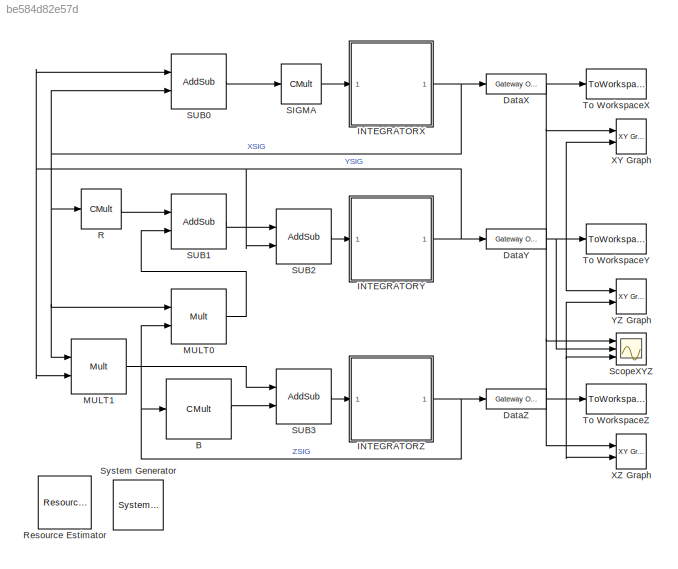
MODEL slx_be584d82e57d
KIND model
BLOCK [Reference]  System Generator  REF=xbsIndex_r4/ System Generator
  AttributesFormatString = System\nGenerator
  Impl_file = ISE Defaults
  Ports = []
  SourceBlock = xbsIndex_r4/ System Generator
  SourceType = Xilinx System Generator Block
  Synth_file = XST Defaults
  Tag = genX
  UserDataPersistent = on
  block_type = sysgen
  clock_wrapper = Clock Enables
  core_generation = According to Block Masks
  dbl_ovrd = According to Block Masks
  dcm_input_clock_period = 10
  deprecated_control = off
  directory = ./netlist
  eval_field = 0
  has_advanced_control = 0
  incr_netlist = off
  infoedit = System Generator
  package = fbg676
  part = xc7k325t
  proj_type = Project Navigator
  run_coregen = off
  sg_icon_stat = 50,50,0,0,token,white,0,58c5b5770fe5f7c311f53dbc6e73f0f6,right,,[ ],[ ]
  sg_mask_display = fprintf('','COMMENT: begin icon graphics');\npatch([0 50 50 0 0 ],[0 0 50 50 0 ],[1 1 1 ]);\npatch([1.6375 16.81 27.31 37.81 48.31 27.31 12.1375 1.6375 ],[36.655 36.655 47.155 36.655 47.155 47.155 47.155 36.655 ],[0.933333 0.203922 0.141176 ]);\npatch([12.1375 27.31 16.81 1.6375 12.1375 ],[26.155 26.155 36.655 36.655 26.155 ],[0.698039 0.0313725 0.219608 ]);\npatch([1.6375 16.81 27.31 12.1375 1.6375 ]...<+327ch>
  sggui_pos = 1077, 194, 464, 470
  simulink_period = 0.01
  speed = -3
  synthesis_tool = XST
  sysclk_period = 10
  testbench = off
  trim_vbits = Everywhere in SubSystem
  xilinxfamily = kintex7
BLOCK [Reference] B  REF=xbsIndex_r4/CMult
  Ports = [1, 1]
  SourceBlock = xbsIndex_r4/CMult
  SourceType = Xilinx Constant Multiplier Block
  arith_type = Signed  (2's comp)
  bin_pt = 52
  block_type = cmult
  const = 8/3
  const_bin_pt = 12
  const_n_bits = 32
  dbl_ovrd = off
  en = off
  exp_bits = 8
  float_type = Single
  fraction_bits = 24
  gui_display_data_type = Fixed-point
  has_advanced_control = 0
  latency = 0
  mem_type = Distributed RAM
  n_bits = 64
  overflow = Wrap
  pipeline = off
  precision = User Defined
  quantization = Round  (unbiased: +/- Inf)
  sg_icon_stat = 65,60,1,1,white,blue,2,daff8bfa,right,,[ ],[ ]
  sg_mask_display = fprintf('','COMMENT: begin icon graphics');\npatch([0 65 0 0 ],[0 30 60 0 ],[0.77 0.82 0.91 ]);\nplot([0 65 0 0 ],[0 30 60 0 ]);\npatch([5.07 12.006 16.806 21.606 26.406 16.806 9.87 5.07 ],[35.328 35.328 40.128 35.328 40.128 40.128 40.128 35.328 ],[1 1 1 ]);\npatch([9.87 16.806 12.006 5.07 9.87 ],[30.528 30.528 35.328 35.328 30.528 ],[0.931 0.946 0.973 ]);\npatch([5.07 12.006 16.806 9.87 5.07 ],[25.728...<+342ch>
  sggui_pos = 933,216,348,417
  use_behavioral_HDL = off
  xl_area = [0,0,0,0,0,0,0]
  xl_use_area = off
BLOCK [Reference] DataX  REF=xbsIndex_r4/Gateway Out
  DACChannel = '1'
  LOCs = {}
  Ports = [1, 1]
  SourceBlock = xbsIndex_r4/Gateway Out
  SourceType = Xilinx Gateway Out Block
  UseAsDAC = off
  block_type = gatewayout
  has_advanced_control = 0
  hdl_port = on
  infoedit = Gateway out block.  Converts Xilinx fixed-point or floating-point type inputs into ouputs of type Simulink integer, single, double, or fixed-point.<br><br>Hardware notes:  In hardware these blocks become top level output ports or are discarded, depending on how they are configured.  <repeated x3 — deduplicated; at blocks: DataX, DataY, DataZ>
  inherit_from_input = off
  locs_specified = off
  sg_icon_stat = 60,20,1,1,white,yellow,1,cc31b7ac,right,,[ ],[ ]
  sg_mask_display = fprintf('','COMMENT: begin icon graphics');\npatch([0 60 60 0 0 ],[0 0 20 20 0 ],[0.95 0.93 0.65 ]);\nplot([0 60 60 0 0 ],[0 0 20 20 0 ]);\npatch([25.55 28.44 30.44 32.44 34.44 30.44 27.55 25.55 ],[12.22 12.22 14.22 12.22 14.22 14.22 14.22 12.22 ],[1 1 1 ]);\npatch([27.55 30.44 28.44 25.55 27.55 ],[10.22 10.22 12.22 12.22 10.22 ],[0.985 0.979 0.895 ]);\npatch([25.55 28.44 30.44 27.55 25.55 ],[8.22 8.22...<+384ch>  <repeated x3 — deduplicated; at blocks: DataX, DataY, DataZ>
  sggui_pos = -1,-1,-1,-1
  timing_constraint = None
  xl_area = [0,0,0,0,0,0,0]
  xl_use_area = off
BLOCK [Reference] DataY  REF=xbsIndex_r4/Gateway Out
  DACChannel = '1'
  LOCs = {}
  Ports = [1, 1]
  SourceBlock = xbsIndex_r4/Gateway Out
  SourceType = Xilinx Gateway Out Block
  UseAsDAC = off
  block_type = gatewayout
  has_advanced_control = 0
  hdl_port = on
  inherit_from_input = off
  locs_specified = off
  sg_icon_stat = 60,20,1,1,white,yellow,1,cc31b7ac,right,,[ ],[ ]
  sggui_pos = -1,-1,-1,-1
  timing_constraint = None
  xl_area = [0,0,0,0,0,0,0]
  xl_use_area = off
BLOCK [Reference] DataZ  REF=xbsIndex_r4/Gateway Out
  DACChannel = '1'
  LOCs = {}
  Ports = [1, 1]
  SourceBlock = xbsIndex_r4/Gateway Out
  SourceType = Xilinx Gateway Out Block
  UseAsDAC = off
  block_type = gatewayout
  has_advanced_control = 0
  hdl_port = on
  inherit_from_input = off
  locs_specified = off
  sg_icon_stat = 60,20,1,1,white,yellow,1,cc31b7ac,right,,[ ],[ ]
  sggui_pos = -1,-1,-1,-1
  timing_constraint = None
  xl_area = [0,0,0,0,0,0,0]
  xl_use_area = off
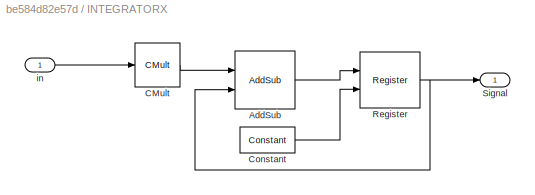
BLOCK [SubSystem] INTEGRATORX
  Ports = [1, 1]
  RequestExecContextInheritance = off
BLOCK [Reference] INTEGRATORX/AddSub  REF=xbsIndex_r4/AddSub
  Ports = [2, 1]
  SourceBlock = xbsIndex_r4/AddSub
  SourceType = Xilinx Adder/Subtracter Block
  arith_type = Signed  (2's comp)
  bin_pt = 12
  block_type = addsub
  dbl_ovrd = off
  en = off
  has_advanced_control = 0
  hw_selection = Fabric
  latency = 0
  mode = Addition
  n_bits = 32
  overflow = Wrap
  pipelined = off
  precision = User Defined
  quantization = Round  (unbiased: +/- Inf)
  sg_icon_stat = 60,58,2,1,white,blue,0,e139daf6,right,,[ ],[ ]
  sg_mask_display = fprintf('','COMMENT: begin icon graphics');\npatch([0 60 60 0 0 ],[0 0 58 58 0 ],[0.77 0.82 0.91 ]);\nplot([0 60 60 0 0 ],[0 0 58 58 0 ]);\npatch([12.2 23.76 31.76 39.76 47.76 31.76 20.2 12.2 ],[37.88 37.88 45.88 37.88 45.88 45.88 45.88 37.88 ],[1 1 1 ]);\npatch([20.2 31.76 23.76 12.2 20.2 ],[29.88 29.88 37.88 37.88 29.88 ],[0.931 0.946 0.973 ]);\npatch([12.2 23.76 31.76 20.2 12.2 ],[21.88 21.88 29.88 ...<+411ch>  <repeated x3 — deduplicated; at blocks: AddSub>
  sggui_pos = 1017,600,348,319
  use_behavioral_HDL = off
  use_carryin = off
  use_carryout = off
  xl_area = [0,0,0,0,0,0,0]
  xl_use_area = off
BLOCK [Reference] INTEGRATORX/CMult  REF=xbsIndex_r4/CMult
  Ports = [1, 1]
  SourceBlock = xbsIndex_r4/CMult
  SourceType = Xilinx Constant Multiplier Block
  arith_type = Signed  (2's comp)
  bin_pt = 52
  block_type = cmult
  block_version = 11.1
  const = 1/100
  const_bin_pt = 12
  const_n_bits = 32
  dbl_ovrd = off
  en = off
  exp_bits = 8
  float_type = Single
  fraction_bits = 24
  gui_display_data_type = Fixed-point
  has_advanced_control = 0
  latency = 0
  mem_type = Distributed RAM
  n_bits = 64
  overflow = Wrap
  pipeline = off
  precision = User Defined
  quantization = Round  (unbiased: +/- Inf)
  sg_icon_stat = 45,44,1,1,white,blue,2,984ca216,right,,[ ],[ ]
  sg_mask_display = fprintf('','COMMENT: begin icon graphics');\npatch([0 45 0 0 ],[0 22 44 0 ],[0.77 0.82 0.91 ]);\nplot([0 45 0 0 ],[0 22 44 0 ]);\npatch([2.74 7.942 11.542 15.142 18.742 11.542 6.34 2.74 ],[25.996 25.996 29.596 25.996 29.596 29.596 29.596 25.996 ],[1 1 1 ]);\npatch([6.34 11.542 7.942 2.74 6.34 ],[22.396 22.396 25.996 25.996 22.396 ],[0.931 0.946 0.973 ]);\npatch([2.74 7.942 11.542 6.34 2.74 ],[18.796 18...<+340ch>  <repeated x3 — deduplicated; at blocks: CMult>
  sggui_pos = -1,-1,-1,-1
  use_behavioral_HDL = off
  xl_area = [0,0,0,0,0,0,0]
  xl_use_area = off
BLOCK [Reference] INTEGRATORX/Constant  REF=xbsIndex_r4/Constant
  Ports = [0, 1]
  SourceBlock = xbsIndex_r4/Constant
  SourceType = Xilinx Constant Block Block
  arith_type = Boolean
  bin_pt = 14
  block_type = constant
  block_version = 11.1
  carry = CIN
  const = 0
  dbl_ovrd = off
  dsp48_infoedit = The use of this block for DSP48 instructions is deprecated.  Please use the Opmode block.
  equ = P=C
  exp_width = 8
  explicit_period = on
  frac_width = 24
  gui_display_data_type = Fixed-point
  has_advanced_control = 0
  inp1 = P
  inp2 = PCIN>>17
  n_bits = 32
  opr = +
  opselect = C
  period = 0.01
  preci_type = Single
  sg_icon_stat = 55,26,0,1,white,blue,0,bf4ddd8b,right,,[ ],[ ]
  sg_list_contents = {'table'=>{'carry'=>'popup(0|1|CIN|~SIGN(P or PCIN)|~SIGN(A*B or A:B)|~SIGND(A*B or A:B))','inp1'=>'popup(0|P|A:B|A*B|C|P+C|A:B+C)','inp2'=>'popup(0|PCIN|P|C|PCIN>>17|P>>17)','opselect'=>'popup(C + A*B|PCIN + A*B|P + A*B|A * B|C + A:B|C - A:B|C|Custom)','userSelections'=>{'carry'=>'CIN','inp1'=>'P','inp2'=>'PCIN>>17','opselect'=>'C'}}}
  sg_mask_display = fprintf('','COMMENT: begin icon graphics');\npatch([0 55 55 0 0 ],[0 0 26 26 0 ],[0.77 0.82 0.91 ]);\nplot([0 55 55 0 0 ],[0 0 26 26 0 ]);\npatch([20.325 24.66 27.66 30.66 33.66 27.66 23.325 20.325 ],[16.33 16.33 19.33 16.33 19.33 19.33 19.33 16.33 ],[1 1 1 ]);\npatch([23.325 27.66 24.66 20.325 23.325 ],[13.33 13.33 16.33 16.33 13.33 ],[0.931 0.946 0.973 ]);\npatch([20.325 24.66 27.66 23.325 20.325 ],[...<+323ch>  <repeated x3 — deduplicated; at blocks: Constant>
  sggui_pos = -1,-1,-1,-1
BLOCK [Reference] INTEGRATORX/Register  REF=xbsIndex_r4/Register
  Ports = [2, 1]
  SourceBlock = xbsIndex_r4/Register
  SourceType = Xilinx Register Block
  block_type = register
  block_version = 11.1
  dbl_ovrd = off
  en = off
  has_advanced_control = 0
  init = 10
  rst = on
  sg_icon_stat = 60,56,2,1,white,blue,0,140cc11c,right,,[ ],[ ]
  sg_mask_display = fprintf('','COMMENT: begin icon graphics');\npatch([0 60 60 0 0 ],[0 0 56 56 0 ],[0.77 0.82 0.91 ]);\nplot([0 60 60 0 0 ],[0 0 56 56 0 ]);\npatch([12.2 23.76 31.76 39.76 47.76 31.76 20.2 12.2 ],[36.88 36.88 44.88 36.88 44.88 44.88 44.88 36.88 ],[1 1 1 ]);\npatch([20.2 31.76 23.76 12.2 20.2 ],[28.88 28.88 36.88 36.88 28.88 ],[0.931 0.946 0.973 ]);\npatch([12.2 23.76 31.76 20.2 12.2 ],[20.88 20.88 28.88 ...<+435ch>  <repeated x3 — deduplicated; at blocks: Register>
  sggui_pos = 879,333,348,192
  xl_area = [0,0,0,0,0,0,0]
  xl_use_area = off
BLOCK [Outport] INTEGRATORX/Signal
  IconDisplay = Port number
  SampleTime = 0.01
BLOCK [Inport] INTEGRATORX/in
  IconDisplay = Port number
  SampleTime = 0.01
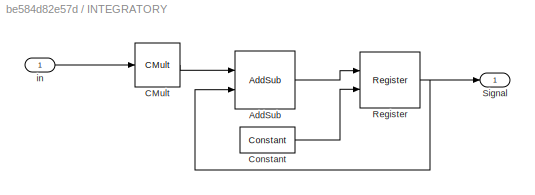
BLOCK [SubSystem] INTEGRATORY
  Ports = [1, 1]
  RequestExecContextInheritance = off
BLOCK [Reference] INTEGRATORY/AddSub  REF=xbsIndex_r4/AddSub
  Ports = [2, 1]
  SourceBlock = xbsIndex_r4/AddSub
  SourceType = Xilinx Adder/Subtracter Block
  arith_type = Signed  (2's comp)
  bin_pt = 12
  block_type = addsub
  dbl_ovrd = off
  en = off
  has_advanced_control = 0
  hw_selection = Fabric
  latency = 0
  mode = Addition
  n_bits = 32
  overflow = Wrap
  pipelined = off
  precision = User Defined
  quantization = Round  (unbiased: +/- Inf)
  sg_icon_stat = 60,58,2,1,white,blue,0,e139daf6,right,,[ ],[ ]
  sggui_pos = 1017,600,348,319
  use_behavioral_HDL = off
  use_carryin = off
  use_carryout = off
  xl_area = [0,0,0,0,0,0,0]
  xl_use_area = off
BLOCK [Reference] INTEGRATORY/CMult  REF=xbsIndex_r4/CMult
  Ports = [1, 1]
  SourceBlock = xbsIndex_r4/CMult
  SourceType = Xilinx Constant Multiplier Block
  arith_type = Signed  (2's comp)
  bin_pt = 52
  block_type = cmult
  block_version = 11.1
  const = 1/100
  const_bin_pt = 12
  const_n_bits = 32
  dbl_ovrd = off
  en = off
  exp_bits = 8
  float_type = Single
  fraction_bits = 24
  gui_display_data_type = Fixed-point
  has_advanced_control = 0
  latency = 0
  mem_type = Distributed RAM
  n_bits = 64
  overflow = Wrap
  pipeline = off
  precision = User Defined
  quantization = Round  (unbiased: +/- Inf)
  sg_icon_stat = 45,44,1,1,white,blue,2,984ca216,right,,[ ],[ ]
  sggui_pos = -1,-1,-1,-1
  use_behavioral_HDL = off
  xl_area = [0,0,0,0,0,0,0]
  xl_use_area = off
BLOCK [Reference] INTEGRATORY/Constant  REF=xbsIndex_r4/Constant
  Ports = [0, 1]
  SourceBlock = xbsIndex_r4/Constant
  SourceType = Xilinx Constant Block Block
  arith_type = Boolean
  bin_pt = 14
  block_type = constant
  block_version = 11.1
  carry = CIN
  const = 0
  dbl_ovrd = off
  dsp48_infoedit = The use of this block for DSP48 instructions is deprecated.  Please use the Opmode block.
  equ = P=C
  exp_width = 8
  explicit_period = on
  frac_width = 24
  gui_display_data_type = Fixed-point
  has_advanced_control = 0
  inp1 = P
  inp2 = PCIN>>17
  n_bits = 32
  opr = +
  opselect = C
  period = 0.01
  preci_type = Single
  sg_icon_stat = 55,26,0,1,white,blue,0,bf4ddd8b,right,,[ ],[ ]
  sg_list_contents = {'table'=>{'carry'=>'popup(0|1|CIN|~SIGN(P or PCIN)|~SIGN(A*B or A:B)|~SIGND(A*B or A:B))','inp1'=>'popup(0|P|A:B|A*B|C|P+C|A:B+C)','inp2'=>'popup(0|PCIN|P|C|PCIN>>17|P>>17)','opselect'=>'popup(C + A*B|PCIN + A*B|P + A*B|A * B|C + A:B|C - A:B|C|Custom)','userSelections'=>{'carry'=>'CIN','inp1'=>'P','inp2'=>'PCIN>>17','opselect'=>'C'}}}
  sggui_pos = -1,-1,-1,-1
BLOCK [Reference] INTEGRATORY/Register  REF=xbsIndex_r4/Register
  Ports = [2, 1]
  SourceBlock = xbsIndex_r4/Register
  SourceType = Xilinx Register Block
  block_type = register
  block_version = 11.1
  dbl_ovrd = off
  en = off
  has_advanced_control = 0
  init = 10
  rst = on
  sg_icon_stat = 60,56,2,1,white,blue,0,140cc11c,right,,[ ],[ ]
  sggui_pos = 879,333,348,192
  xl_area = [0,0,0,0,0,0,0]
  xl_use_area = off
BLOCK [Outport] INTEGRATORY/Signal
  IconDisplay = Port number
  SampleTime = 0.01
BLOCK [Inport] INTEGRATORY/in
  IconDisplay = Port number
  SampleTime = 0.01
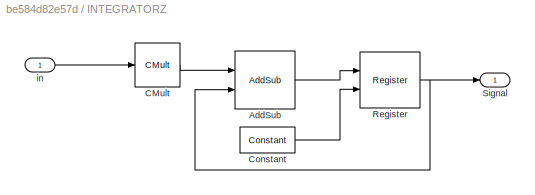
BLOCK [SubSystem] INTEGRATORZ
  Ports = [1, 1]
  RequestExecContextInheritance = off
BLOCK [Reference] INTEGRATORZ/AddSub  REF=xbsIndex_r4/AddSub
  Ports = [2, 1]
  SourceBlock = xbsIndex_r4/AddSub
  SourceType = Xilinx Adder/Subtracter Block
  arith_type = Signed  (2's comp)
  bin_pt = 12
  block_type = addsub
  dbl_ovrd = off
  en = off
  has_advanced_control = 0
  hw_selection = Fabric
  latency = 0
  mode = Addition
  n_bits = 32
  overflow = Wrap
  pipelined = off
  precision = User Defined
  quantization = Round  (unbiased: +/- Inf)
  sg_icon_stat = 60,58,2,1,white,blue,0,e139daf6,right,,[ ],[ ]
  sggui_pos = 1017,600,348,319
  use_behavioral_HDL = off
  use_carryin = off
  use_carryout = off
  xl_area = [0,0,0,0,0,0,0]
  xl_use_area = off
BLOCK [Reference] INTEGRATORZ/CMult  REF=xbsIndex_r4/CMult
  Ports = [1, 1]
  SourceBlock = xbsIndex_r4/CMult
  SourceType = Xilinx Constant Multiplier Block
  arith_type = Signed  (2's comp)
  bin_pt = 52
  block_type = cmult
  block_version = 11.1
  const = 1/100
  const_bin_pt = 12
  const_n_bits = 32
  dbl_ovrd = off
  en = off
  exp_bits = 8
  float_type = Single
  fraction_bits = 24
  gui_display_data_type = Fixed-point
  has_advanced_control = 0
  latency = 0
  mem_type = Distributed RAM
  n_bits = 64
  overflow = Wrap
  pipeline = off
  precision = User Defined
  quantization = Round  (unbiased: +/- Inf)
  sg_icon_stat = 45,44,1,1,white,blue,2,984ca216,right,,[ ],[ ]
  sggui_pos = -1,-1,-1,-1
  use_behavioral_HDL = off
  xl_area = [0,0,0,0,0,0,0]
  xl_use_area = off
BLOCK [Reference] INTEGRATORZ/Constant  REF=xbsIndex_r4/Constant
  Ports = [0, 1]
  SourceBlock = xbsIndex_r4/Constant
  SourceType = Xilinx Constant Block Block
  arith_type = Boolean
  bin_pt = 14
  block_type = constant
  block_version = 11.1
  carry = CIN
  const = 0
  dbl_ovrd = off
  dsp48_infoedit = The use of this block for DSP48 instructions is deprecated.  Please use the Opmode block.
  equ = P=C
  exp_width = 8
  explicit_period = on
  frac_width = 24
  gui_display_data_type = Boolean
  has_advanced_control = 0
  inp1 = P
  inp2 = PCIN>>17
  n_bits = 32
  opr = +
  opselect = C
  period = 0.01
  preci_type = Single
  sg_icon_stat = 55,26,0,1,white,blue,0,bf4ddd8b,right,,[ ],[ ]
  sggui_pos = -1,-1,-1,-1
BLOCK [Reference] INTEGRATORZ/Register  REF=xbsIndex_r4/Register
  Ports = [2, 1]
  SourceBlock = xbsIndex_r4/Register
  SourceType = Xilinx Register Block
  block_type = register
  block_version = 11.1
  dbl_ovrd = off
  en = off
  has_advanced_control = 0
  init = 10
  rst = on
  sg_icon_stat = 60,56,2,1,white,blue,0,140cc11c,right,,[ ],[ ]
  sggui_pos = 879,333,348,192
  xl_area = [0,0,0,0,0,0,0]
  xl_use_area = off
BLOCK [Outport] INTEGRATORZ/Signal
  IconDisplay = Port number
  SampleTime = 0.01
BLOCK [Inport] INTEGRATORZ/in
  IconDisplay = Port number
  SampleTime = 0.01
BLOCK [Reference] MULT0  REF=xbsIndex_r4/Mult
  Ports = [2, 1]
  SourceBlock = xbsIndex_r4/Mult
  SourceType = Xilinx Multiplier Block
  arith_type = Signed  (2's comp)
  bin_pt = 12
  block_type = mult
  dbl_ovrd = off
  en = off
  has_advanced_control = 0
  infoedit = Hardware notes: To check for the optimum internal pipeline stages of the dedicated multiplier you must select 'Test for optimum pipelining'.<br><br>Optimization Goal: For implementation into device fabric (LUTs), the Speed or Area optimization will take effect only if it's supported by IP for the particular device family. Otherwise, the results will be identical regardless of the selection.
  latency = 0
  n_bits = 32
  opt = Speed
  optimum_pipeline = off
  overflow = Wrap
  pipeline = on
  placement_style = Triangular
  precision = User Defined
  quantization = Truncate
  sg_icon_stat = 55,55,2,1,white,blue,0,658d65c4,right,,[ ],[ ]
  sg_mask_display = fprintf('','COMMENT: begin icon graphics');\npatch([0 55 55 0 0 ],[0 0 55 55 0 ],[0.77 0.82 0.91 ]);\nplot([0 55 55 0 0 ],[0 0 55 55 0 ]);\npatch([11.425 21.54 28.54 35.54 42.54 28.54 18.425 11.425 ],[34.77 34.77 41.77 34.77 41.77 41.77 41.77 34.77 ],[1 1 1 ]);\npatch([18.425 28.54 21.54 11.425 18.425 ],[27.77 27.77 34.77 34.77 27.77 ],[0.931 0.946 0.973 ]);\npatch([11.425 21.54 28.54 18.425 11.425 ],[...<+464ch>
  sggui_pos = 1176,244,348,577
  use_behavioral_HDL = off
  use_embedded = on
  use_rpm = on
  xl_area = [0,0,0,0,0,0,0]
  xl_use_area = off
BLOCK [Reference] MULT1  REF=xbsIndex_r4/Mult
  Ports = [2, 1]
  SourceBlock = xbsIndex_r4/Mult
  SourceType = Xilinx Multiplier Block
  arith_type = Signed  (2's comp)
  bin_pt = 12
  block_type = mult
  dbl_ovrd = off
  en = off
  has_advanced_control = 0
  infoedit = Hardware notes: To check for the optimum internal pipeline stages of the dedicated multiplier you must select 'Test for optimum pipelining'.<br><br>Optimization Goal: For implementation into device fabric (LUTs), the Speed or Area optimization will take effect only if it's supported by IP for the particular device family. Otherwise, the results will be identical regardless of the selection.
  latency = 0
  n_bits = 32
  opt = Speed
  optimum_pipeline = off
  overflow = Wrap
  pipeline = on
  placement_style = Triangular
  precision = User Defined
  quantization = Truncate
  sg_icon_stat = 55,55,2,1,white,blue,0,658d65c4,right,,[ ],[ ]
  sg_mask_display = fprintf('','COMMENT: begin icon graphics');\npatch([0 55 55 0 0 ],[0 0 55 55 0 ],[0.77 0.82 0.91 ]);\nplot([0 55 55 0 0 ],[0 0 55 55 0 ]);\npatch([11.425 21.54 28.54 35.54 42.54 28.54 18.425 11.425 ],[34.77 34.77 41.77 34.77 41.77 41.77 41.77 34.77 ],[1 1 1 ]);\npatch([18.425 28.54 21.54 11.425 18.425 ],[27.77 27.77 34.77 34.77 27.77 ],[0.931 0.946 0.973 ]);\npatch([11.425 21.54 28.54 18.425 11.425 ],[...<+464ch>
  sggui_pos = 1176,244,348,577
  use_behavioral_HDL = off
  use_embedded = on
  use_rpm = on
  xl_area = [0,0,0,0,0,0,0]
  xl_use_area = off
BLOCK [Reference] R  REF=xbsIndex_r4/CMult
  Ports = [1, 1]
  SourceBlock = xbsIndex_r4/CMult
  SourceType = Xilinx Constant Multiplier Block
  arith_type = Signed  (2's comp)
  bin_pt = 52
  block_type = cmult
  block_version = 11.1
  const = 28
  const_bin_pt = 12
  const_n_bits = 32
  dbl_ovrd = off
  en = off
  exp_bits = 8
  float_type = Single
  fraction_bits = 24
  gui_display_data_type = Fixed-point
  has_advanced_control = 0
  latency = 0
  mem_type = Distributed RAM
  n_bits = 64
  overflow = Wrap
  pipeline = off
  precision = User Defined
  quantization = Round  (unbiased: +/- Inf)
  sg_icon_stat = 40,40,1,1,white,blue,2,e7dd1821,right,,[ ],[ ]
  sg_mask_display = fprintf('','COMMENT: begin icon graphics');\npatch([0 40 0 0 ],[0 20 40 0 ],[0.77 0.82 0.91 ]);\nplot([0 40 0 0 ],[0 20 40 0 ]);\npatch([3.325 7.66 10.66 13.66 16.66 10.66 6.325 3.325 ],[23.33 23.33 26.33 23.33 26.33 26.33 26.33 23.33 ],[1 1 1 ]);\npatch([6.325 10.66 7.66 3.325 6.325 ],[20.33 20.33 23.33 23.33 20.33 ],[0.931 0.946 0.973 ]);\npatch([3.325 7.66 10.66 6.325 3.325 ],[17.33 17.33 20.33 20.3...<+309ch>
  sggui_pos = 476,106,348,310
  use_behavioral_HDL = off
  xl_area = [0,0,0,0,0,0,0]
  xl_use_area = off
BLOCK [Reference] Resource Estimator  REF=xbsIndex_r4/Resource Estimator
  AttributesFormatString = Resource\nEstimator
  BRAMs = 20
  EBMs = 10
  FFs = 500
  IOBs = 48
  LUTs = 500
  Ports = []
  Slices = 100
  SourceBlock = xbsIndex_r4/Resource Estimator
  SourceType = Xilinx Resource Estimator Block
  TBUFs = 0
  Tag = resEstTag
  block_type = resource_estimator
  est_options = Estimate
  has_advanced_control = 0
  sg_icon_stat = 53,53,-1,-1,blue,white,0,07734,right,,[ ],[ ]
  sg_mask_display = fprintf('','COMMENT: begin icon graphics');\npatch([0 53 53 0 0 ],[0 0 53 53 0 ],[1 1 1 ]);\nplot([0 53 53 0 0 ],[0 0 53 53 0 ]);\npatch([10.425 20.54 27.54 34.54 41.54 27.54 17.425 10.425 ],[33.77 33.77 40.77 33.77 40.77 40.77 40.77 33.77 ],[0.839 0.874 0.937 ]);\npatch([17.425 27.54 20.54 10.425 17.425 ],[26.77 26.77 33.77 33.77 26.77 ],[0.77 0.82 0.91 ]);\npatch([10.425 20.54 27.54 17.425 10.425 ],[...<+293ch>
  sggui_pos = 608,656,336,292
  xl_use_estimator_area = off
BLOCK [Reference] SIGMA  REF=xbsIndex_r4/CMult
  Ports = [1, 1]
  SourceBlock = xbsIndex_r4/CMult
  SourceType = Xilinx Constant Multiplier Block
  arith_type = Signed  (2's comp)
  bin_pt = 52
  block_type = cmult
  block_version = 11.1
  const = 10
  const_bin_pt = 12
  const_n_bits = 32
  dbl_ovrd = off
  en = off
  exp_bits = 8
  float_type = Single
  fraction_bits = 24
  gui_display_data_type = Fixed-point
  has_advanced_control = 0
  latency = 0
  mem_type = Distributed RAM
  n_bits = 64
  overflow = Wrap
  pipeline = off
  precision = User Defined
  quantization = Round  (unbiased: +/- Inf)
  sg_icon_stat = 40,40,1,1,white,blue,2,bcbbc766,right,,[ ],[ ]
  sg_mask_display = fprintf('','COMMENT: begin icon graphics');\npatch([0 40 0 0 ],[0 20 40 0 ],[0.77 0.82 0.91 ]);\nplot([0 40 0 0 ],[0 20 40 0 ]);\npatch([3.325 7.66 10.66 13.66 16.66 10.66 6.325 3.325 ],[23.33 23.33 26.33 23.33 26.33 26.33 26.33 23.33 ],[1 1 1 ]);\npatch([6.325 10.66 7.66 3.325 6.325 ],[20.33 20.33 23.33 23.33 20.33 ],[0.931 0.946 0.973 ]);\npatch([3.325 7.66 10.66 6.325 3.325 ],[17.33 17.33 20.33 20.3...<+309ch>
  sggui_pos = -1,-1,-1,-1
  use_behavioral_HDL = off
  xl_area = [0,0,0,0,0,0,0]
  xl_use_area = off
BLOCK [Reference] SUB0  REF=xbsIndex_r4/AddSub
  Ports = [2, 1]
  SourceBlock = xbsIndex_r4/AddSub
  SourceType = Xilinx Adder/Subtracter Block
  arith_type = Signed  (2's comp)
  bin_pt = 12
  block_type = addsub
  block_version = 11.1
  dbl_ovrd = off
  en = off
  has_advanced_control = 0
  hw_selection = Fabric
  latency = 0
  mode = Subtraction
  n_bits = 32
  overflow = Wrap
  pipelined = off
  precision = User Defined
  quantization = Round  (unbiased: +/- Inf)
  sg_icon_stat = 55,55,2,1,white,blue,0,32e1f85f,right,,[ ],[ ]
  sg_mask_display = fprintf('','COMMENT: begin icon graphics');\npatch([0 55 55 0 0 ],[0 0 55 55 0 ],[0.77 0.82 0.91 ]);\nplot([0 55 55 0 0 ],[0 0 55 55 0 ]);\npatch([11.425 21.54 28.54 35.54 42.54 28.54 18.425 11.425 ],[34.77 34.77 41.77 34.77 41.77 41.77 41.77 34.77 ],[1 1 1 ]);\npatch([18.425 28.54 21.54 11.425 18.425 ],[27.77 27.77 34.77 34.77 27.77 ],[0.931 0.946 0.973 ]);\npatch([11.425 21.54 28.54 18.425 11.425 ],[...<+435ch>  <repeated x4 — deduplicated; at blocks: SUB0, SUB1, SUB2, SUB3>
  sggui_pos = 551,173,348,310
  use_behavioral_HDL = off
  use_carryin = off
  use_carryout = off
  xl_area = [0,0,0,0,0,0,0]
  xl_use_area = off
BLOCK [Reference] SUB1  REF=xbsIndex_r4/AddSub
  Ports = [2, 1]
  SourceBlock = xbsIndex_r4/AddSub
  SourceType = Xilinx Adder/Subtracter Block
  arith_type = Signed  (2's comp)
  bin_pt = 12
  block_type = addsub
  block_version = 11.1
  dbl_ovrd = off
  en = off
  has_advanced_control = 0
  hw_selection = Fabric
  latency = 0
  mode = Subtraction
  n_bits = 32
  overflow = Wrap
  pipelined = off
  precision = User Defined
  quantization = Round  (unbiased: +/- Inf)
  sg_icon_stat = 55,55,2,1,white,blue,0,32e1f85f,right,,[ ],[ ]
  sggui_pos = 551,173,348,310
  use_behavioral_HDL = off
  use_carryin = off
  use_carryout = off
  xl_area = [0,0,0,0,0,0,0]
  xl_use_area = off
BLOCK [Reference] SUB2  REF=xbsIndex_r4/AddSub
  Ports = [2, 1]
  SourceBlock = xbsIndex_r4/AddSub
  SourceType = Xilinx Adder/Subtracter Block
  arith_type = Signed  (2's comp)
  bin_pt = 12
  block_type = addsub
  block_version = 11.1
  dbl_ovrd = off
  en = off
  has_advanced_control = 0
  hw_selection = Fabric
  latency = 0
  mode = Subtraction
  n_bits = 32
  overflow = Wrap
  pipelined = off
  precision = User Defined
  quantization = Round  (unbiased: +/- Inf)
  sg_icon_stat = 55,55,2,1,white,blue,0,32e1f85f,right,,[ ],[ ]
  sggui_pos = 551,173,348,310
  use_behavioral_HDL = off
  use_carryin = off
  use_carryout = off
  xl_area = [0,0,0,0,0,0,0]
  xl_use_area = off
BLOCK [Reference] SUB3  REF=xbsIndex_r4/AddSub
  Ports = [2, 1]
  SourceBlock = xbsIndex_r4/AddSub
  SourceType = Xilinx Adder/Subtracter Block
  arith_type = Signed  (2's comp)
  bin_pt = 12
  block_type = addsub
  block_version = 11.1
  dbl_ovrd = off
  en = off
  has_advanced_control = 0
  hw_selection = Fabric
  latency = 0
  mode = Subtraction
  n_bits = 32
  overflow = Wrap
  pipelined = off
  precision = User Defined
  quantization = Round  (unbiased: +/- Inf)
  sg_icon_stat = 55,55,2,1,white,blue,0,32e1f85f,right,,[ ],[ ]
  sggui_pos = 551,173,348,310
  use_behavioral_HDL = off
  use_carryin = off
  use_carryout = off
  xl_area = [0,0,0,0,0,0,0]
  xl_use_area = off
BLOCK [Scope] ScopeXYZ
  DataFormat = StructureWithTime
  Description = XYZ in time
  Floating = off
  NumInputPorts = 3
  Ports = [3]
  SampleInput = on
  SampleTime = 0
  ShowLegends = off
  TimeRange = 50
  YMax = 20~25~50
  YMin = -20~-25~5
BLOCK [ToWorkspace] To WorkspaceX
  MaxDataPoints = inf
  Ports = [1]
  SampleTime = 0.01
  VariableName = X
BLOCK [ToWorkspace] To WorkspaceY
  MaxDataPoints = inf
  Ports = [1]
  SampleTime = 0.01
  VariableName = Y
BLOCK [ToWorkspace] To WorkspaceZ
  MaxDataPoints = inf
  Ports = [1]
  SampleTime = 0.01
  VariableName = Z
BLOCK [Reference] XY Graph  REF=simulink/Sinks/XY Graph
  Ports = [2]
  SourceBlock = simulink/Sinks/XY Graph
  SourceType = XY scope.
  st = -1
  xmax = 30
  xmin = -30
  ymax = 30
  ymin = -30
BLOCK [Reference] XZ Graph  REF=simulink/Sinks/XY Graph
  Ports = [2]
  SourceBlock = simulink/Sinks/XY Graph
  SourceType = XY scope.
  st = -1
  xmax = 30
  xmin = -30
  ymax = 60
  ymin = 0
BLOCK [Reference] YZ Graph  REF=simulink/Sinks/XY Graph
  Ports = [2]
  SourceBlock = simulink/Sinks/XY Graph
  SourceType = XY scope.
  st = -1
  xmax = 30
  xmin = -30
  ymax = 60
  ymin = 0
LINE B:1 -> SUB3:2
NET DataX:1 -> ScopeXYZ:1, To WorkspaceX:1, XY Graph:1, XZ Graph:1
NET DataY:1 -> ScopeXYZ:2, To WorkspaceY:1, XY Graph:2, YZ Graph:1
NET DataZ:1 -> ScopeXYZ:3, To WorkspaceZ:1, XZ Graph:2, YZ Graph:2
LINE INTEGRATORX/AddSub:1 -> INTEGRATORX/Register:1
LINE INTEGRATORX/CMult:1 -> INTEGRATORX/AddSub:1
LINE INTEGRATORX/Constant:1 -> INTEGRATORX/Register:2
NET INTEGRATORX/Register:1 -> INTEGRATORX/AddSub:2, INTEGRATORX/Signal:1
LINE INTEGRATORX/in:1 -> INTEGRATORX/CMult:1
NET INTEGRATORX:1 -> DataX:1, MULT0:1, MULT1:1, R:1, SUB0:2
LINE INTEGRATORY/AddSub:1 -> INTEGRATORY/Register:1
LINE INTEGRATORY/CMult:1 -> INTEGRATORY/AddSub:1
LINE INTEGRATORY/Constant:1 -> INTEGRATORY/Register:2
NET INTEGRATORY/Register:1 -> INTEGRATORY/AddSub:2, INTEGRATORY/Signal:1
LINE INTEGRATORY/in:1 -> INTEGRATORY/CMult:1
NET INTEGRATORY:1 -> DataY:1, MULT1:2, SUB0:1, SUB2:2
LINE INTEGRATORZ/AddSub:1 -> INTEGRATORZ/Register:1
LINE INTEGRATORZ/CMult:1 -> INTEGRATORZ/AddSub:1
LINE INTEGRATORZ/Constant:1 -> INTEGRATORZ/Register:2
NET INTEGRATORZ/Register:1 -> INTEGRATORZ/AddSub:2, INTEGRATORZ/Signal:1
LINE INTEGRATORZ/in:1 -> INTEGRATORZ/CMult:1
NET INTEGRATORZ:1 -> B:1, DataZ:1, MULT0:2
LINE MULT0:1 -> SUB1:2
LINE MULT1:1 -> SUB3:1
LINE R:1 -> SUB1:1
LINE SIGMA:1 -> INTEGRATORX:1
LINE SUB0:1 -> SIGMA:1
LINE SUB1:1 -> SUB2:1
LINE SUB2:1 -> INTEGRATORY:1
LINE SUB3:1 -> INTEGRATORZ:1
note: NET lines group one-source signal fan-out (src -> all destinations, sorted); 1:1 wires keep LINE
